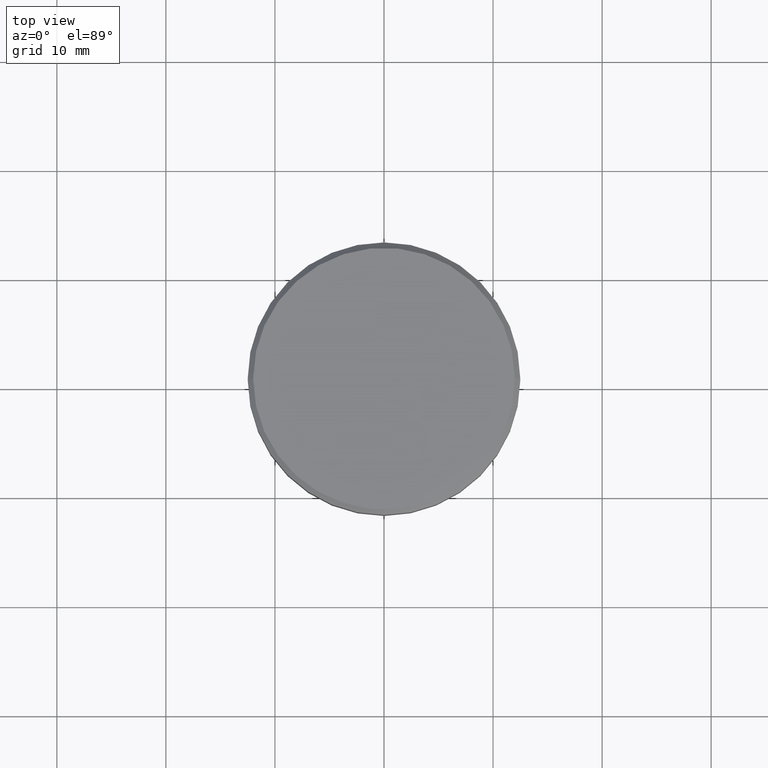
[diagram: clean part render]
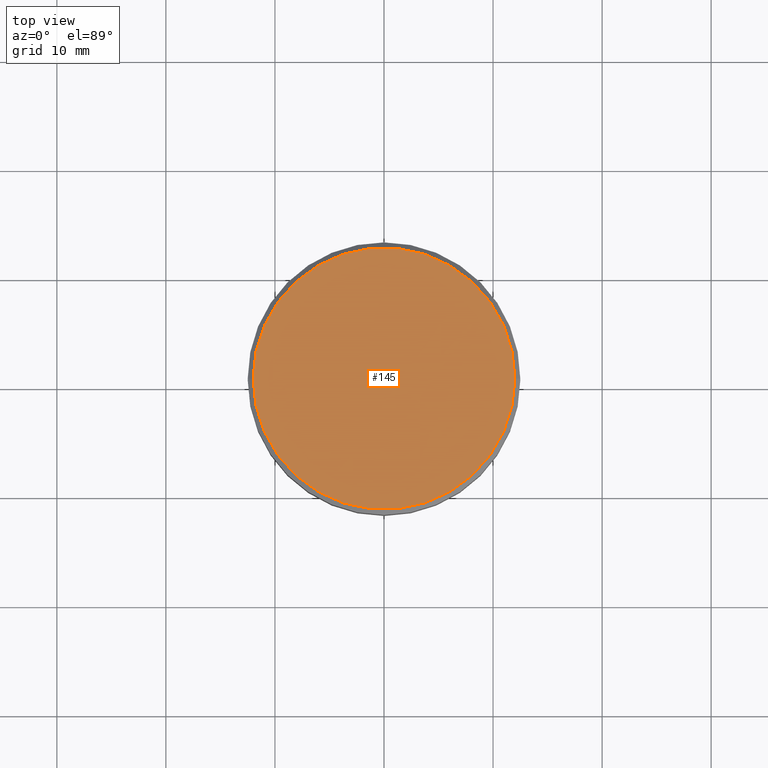
[diagram: same view with one face highlighted and labeled with its STEP entity id]
A machine part, top view. The second image highlights one B-rep face of the part: STEP entity #145.
In plain terms, the highlighted planar face has unit normal (0, -0, 1).
Its self-contained STEP definition (entity closure, byte-faithful):
#12 = FACE_OUTER_BOUND ( 'NONE', #532, .T. ) ;
#19 = VERTEX_POINT ( 'NONE', #1064 ) ;
#109 = DIRECTION ( 'NONE',  ( 1.000000000000000000, 0.000000000000000000, 0.000000000000000000 ) ) ;
#145 = ADVANCED_FACE ( 'NONE', ( #12 ), #741, .T. ) ;
#164 = CIRCLE ( 'NONE', #714, 12.00000000000001066 ) ;
#217 = CARTESIAN_POINT ( 'NONE',  ( 0.000000000000000000, 0.000000000000000000, 0.000000000000000000 ) ) ;
#231 = CARTESIAN_POINT ( 'NONE',  ( 12.00000000000001066, 1.500192328955508326E-15, 0.000000000000000000 ) ) ;
#286 = DIRECTION ( 'NONE',  ( -0.000000000000000000, -0.000000000000000000, 1.000000000000000000 ) ) ;
#458 = AXIS2_PLACEMENT_3D ( 'NONE', #217, #1094, #942 ) ;
#532 = EDGE_LOOP ( 'NONE', ( #856, #688 ) ) ;
#536 = EDGE_CURVE ( 'NONE', #1114, #19, #575, .T. ) ;
#575 = CIRCLE ( 'NONE', #458, 12.00000000000001066 ) ;
#647 = DIRECTION ( 'NONE',  ( 0.000000000000000000, -0.000000000000000000, 1.000000000000000000 ) ) ;
#688 = ORIENTED_EDGE ( 'NONE', *, *, #536, .T. ) ;
#714 = AXIS2_PLACEMENT_3D ( 'NONE', #1031, #286, #109 ) ;
#715 = AXIS2_PLACEMENT_3D ( 'NONE', #1103, #647, #768 ) ;
#741 = PLANE ( 'NONE',  #715 ) ;
#768 = DIRECTION ( 'NONE',  ( 1.000000000000000000, 0.000000000000000000, 0.000000000000000000 ) ) ;
#856 = ORIENTED_EDGE ( 'NONE', *, *, #930, .T. ) ;
#930 = EDGE_CURVE ( 'NONE', #19, #1114, #164, .T. ) ;
#942 = DIRECTION ( 'NONE',  ( 1.000000000000000000, 0.000000000000000000, 0.000000000000000000 ) ) ;
#1031 = CARTESIAN_POINT ( 'NONE',  ( 0.000000000000000000, 0.000000000000000000, 0.000000000000000000 ) ) ;
#1064 = CARTESIAN_POINT ( 'NONE',  ( -12.00000000000001066, 0.000000000000000000, 0.000000000000000000 ) ) ;
#1094 = DIRECTION ( 'NONE',  ( -0.000000000000000000, -0.000000000000000000, 1.000000000000000000 ) ) ;
#1103 = CARTESIAN_POINT ( 'NONE',  ( 0.000000000000000000, 0.000000000000000000, 0.000000000000000000 ) ) ;
#1114 = VERTEX_POINT ( 'NONE', #231 ) ;